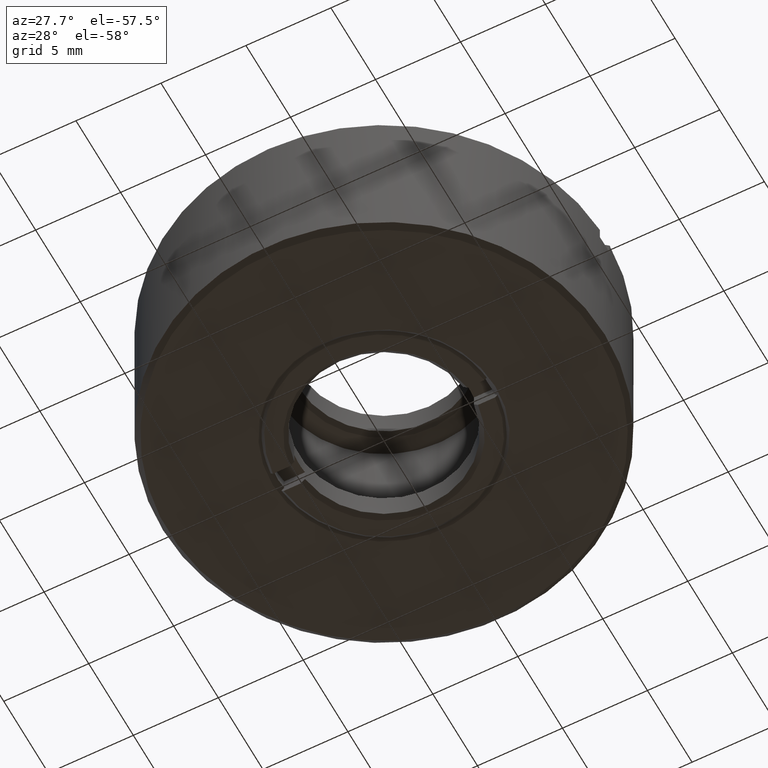
[diagram: clean part render]
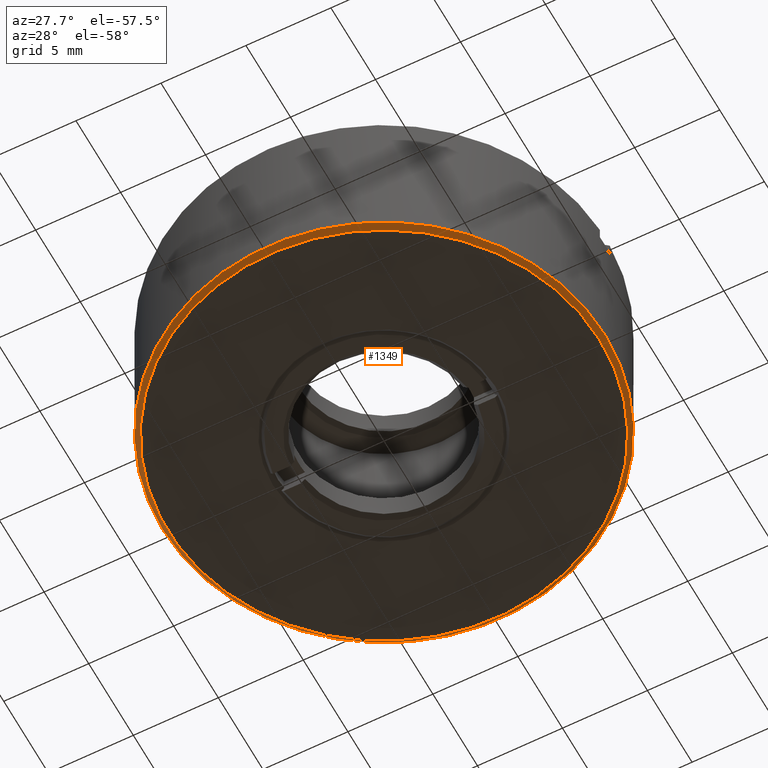
[diagram: same view with one face highlighted and labeled with its STEP entity id]
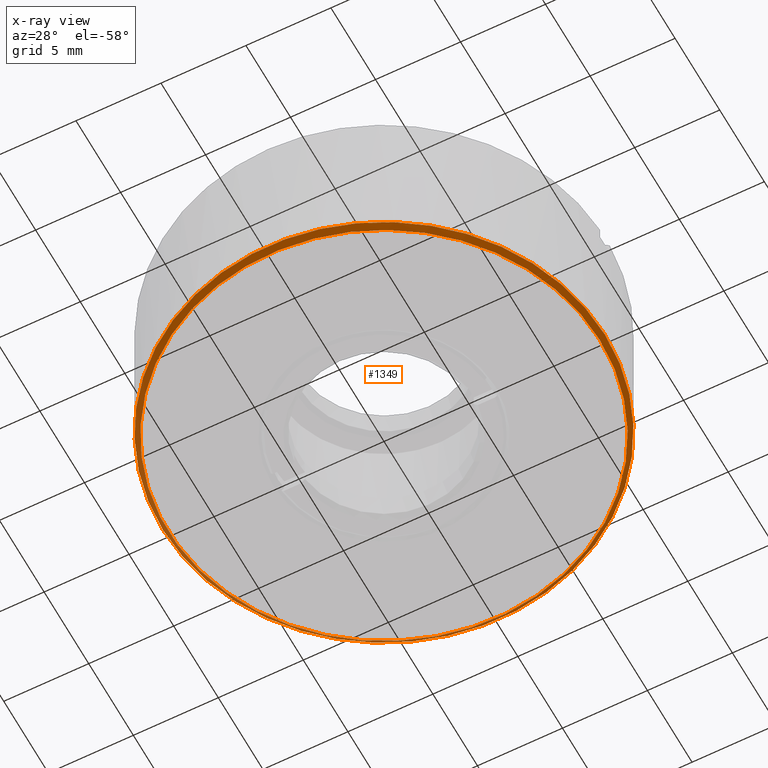
[diagram: x-ray of the same camera — body ghosted, the highlighted face saturated]
A machine part, auxiliary view. The second image highlights one B-rep face of the part: STEP entity #1349.
The next image is the same camera in x-ray: the body ghosted, the highlighted face saturated — about 0% of this face is hidden behind the body in this view.
In plain terms, the highlighted conical surface has half-angle 45 deg.
Its self-contained STEP definition (entity closure, byte-faithful):
#1 = VERTEX_POINT ( 'NONE', #251 ) ;
#23 = FACE_BOUND ( 'NONE', #731, .T. ) ;
#174 = DIRECTION ( 'NONE',  ( 1.000000000000000000, 0.000000000000000000, 0.000000000000000000 ) ) ;
#227 = CARTESIAN_POINT ( 'NONE',  ( 12.69999999999999929, 0.000000000000000000, -5.000000000000000888 ) ) ;
#231 = ORIENTED_EDGE ( 'NONE', *, *, #1231, .F. ) ;
#237 = CARTESIAN_POINT ( 'NONE',  ( 0.000000000000000000, 0.000000000000000000, -4.700000000000000178 ) ) ;
#238 = AXIS2_PLACEMENT_3D ( 'NONE', #237, #513, #757 ) ;
#248 = ORIENTED_EDGE ( 'NONE', *, *, #855, .T. ) ;
#251 = CARTESIAN_POINT ( 'NONE',  ( -13.00000000000000355, 0.000000000000000000, -4.700000000000000178 ) ) ;
#513 = DIRECTION ( 'NONE',  ( 0.000000000000000000, 0.000000000000000000, 1.000000000000000000 ) ) ;
#536 = DIRECTION ( 'NONE',  ( 0.000000000000000000, -0.000000000000000000, 1.000000000000000000 ) ) ;
#555 = CARTESIAN_POINT ( 'NONE',  ( 0.000000000000000000, 0.000000000000000000, -5.000000000000000888 ) ) ;
#580 = DIRECTION ( 'NONE',  ( 1.000000000000000000, 0.000000000000000000, 0.000000000000000000 ) ) ;
#731 = EDGE_LOOP ( 'NONE', ( #248 ) ) ;
#757 = DIRECTION ( 'NONE',  ( -1.000000000000000000, 0.000000000000000000, 0.000000000000000000 ) ) ;
#764 = FACE_OUTER_BOUND ( 'NONE', #1587, .T. ) ;
#833 = AXIS2_PLACEMENT_3D ( 'NONE', #904, #536, #174 ) ;
#855 = EDGE_CURVE ( 'NONE', #1334, #1334, #1347, .T. ) ;
#904 = CARTESIAN_POINT ( 'NONE',  ( 0.000000000000000000, 0.000000000000000000, -4.699999999999998401 ) ) ;
#1114 = AXIS2_PLACEMENT_3D ( 'NONE', #555, #1547, #580 ) ;
#1231 = EDGE_CURVE ( 'NONE', #1, #1, #1489, .T. ) ;
#1334 = VERTEX_POINT ( 'NONE', #227 ) ;
#1347 = CIRCLE ( 'NONE', #1114, 12.69999999999999929 ) ;
#1349 = ADVANCED_FACE ( 'NONE', ( #764, #23 ), #1510, .T. ) ;
#1489 = CIRCLE ( 'NONE', #238, 13.00000000000000355 ) ;
#1510 = CONICAL_SURFACE ( 'NONE', #833, 13.00000000000000533, 0.7853981633974526089 ) ;
#1547 = DIRECTION ( 'NONE',  ( 0.000000000000000000, -0.000000000000000000, 1.000000000000000000 ) ) ;
#1587 = EDGE_LOOP ( 'NONE', ( #231 ) ) ;